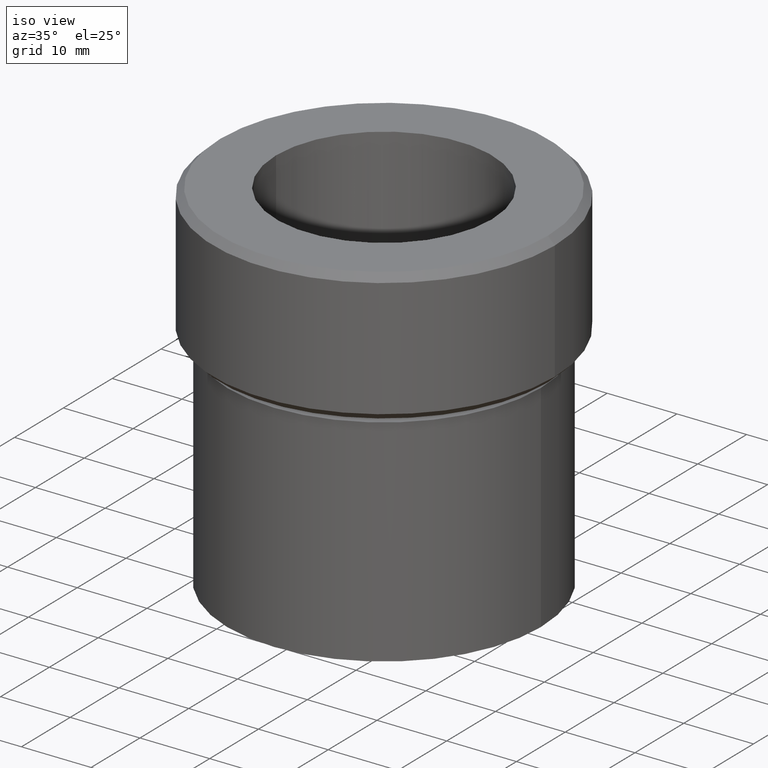
[diagram: clean part render]
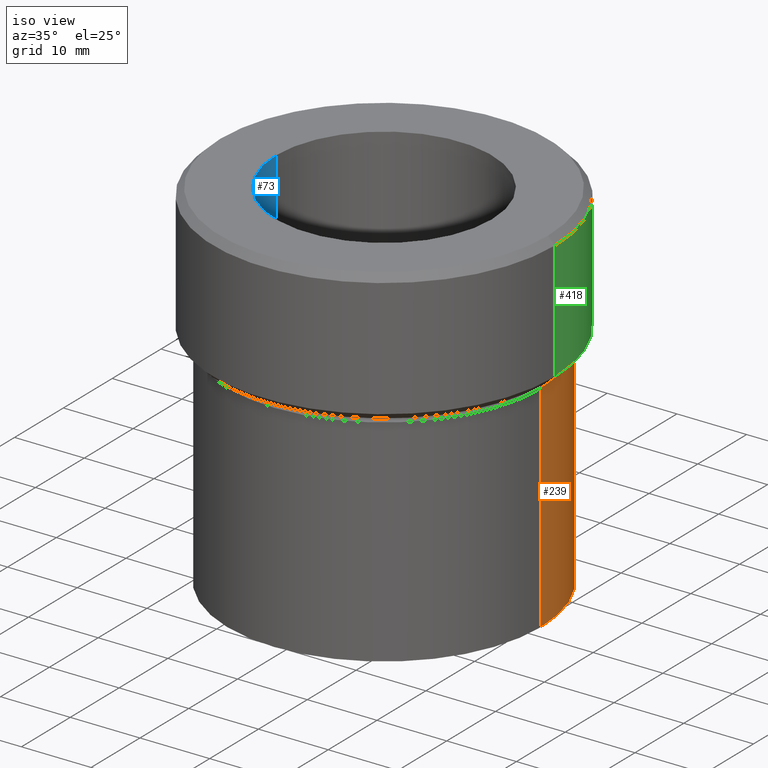
[diagram: same view with three faces highlighted in distinct colors, each labeled with its STEP entity id]
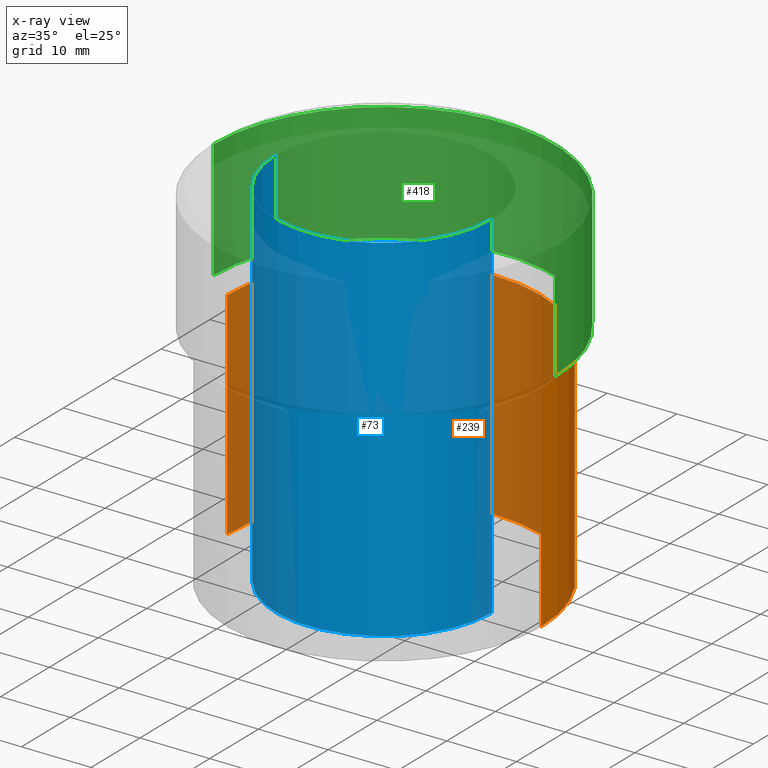
[diagram: x-ray of the same camera — body ghosted, the three highlighted faces saturated]
A machine part, iso view with three faces highlighted in distinct colors.
The next image is the same camera in x-ray (body ghosted, the three faces saturated) — at least one of them is partly hidden behind the body in this view.
Their STEP definitions:

[orange] entity #239 — the highlighted cylindrical surface (partial cylindrical patch) has radius 22.5 mm, axis along (-0, -0, 1).
#8 = ORIENTED_EDGE ( 'NONE', *, *, #213, .F. ) ;
#9 = AXIS2_PLACEMENT_3D ( 'NONE', #208, #228, #386 ) ;
#19 = CARTESIAN_POINT ( 'NONE',  ( 0.000000000000000000, 0.000000000000000000, 0.000000000000000000 ) ) ;
#20 = VERTEX_POINT ( 'NONE', #243 ) ;
#35 = EDGE_CURVE ( 'NONE', #287, #374, #364, .T. ) ;
#43 = DIRECTION ( 'NONE',  ( -0.000000000000000000, -0.000000000000000000, 1.000000000000000000 ) ) ;
#68 = EDGE_LOOP ( 'NONE', ( #310, #448, #8, #499 ) ) ;
#93 = FACE_OUTER_BOUND ( 'NONE', #68, .T. ) ;
#114 = DIRECTION ( 'NONE',  ( -0.000000000000000000, -0.000000000000000000, 1.000000000000000000 ) ) ;
#146 = DIRECTION ( 'NONE',  ( -0.000000000000000000, -0.000000000000000000, 1.000000000000000000 ) ) ;
#155 = VECTOR ( 'NONE', #245, 1000.000000000000000 ) ;
#160 = CARTESIAN_POINT ( 'NONE',  ( 22.50000000000000000, 0.000000000000000000, 0.000000000000000000 ) ) ;
#164 = AXIS2_PLACEMENT_3D ( 'NONE', #515, #114, #396 ) ;
#193 = VERTEX_POINT ( 'NONE', #257 ) ;
#205 = CIRCLE ( 'NONE', #164, 22.50000000000000355 ) ;
#208 = CARTESIAN_POINT ( 'NONE',  ( 0.000000000000000000, 0.000000000000000000, -19.99999999999999645 ) ) ;
#213 = EDGE_CURVE ( 'NONE', #374, #193, #474, .T. ) ;
#222 = AXIS2_PLACEMENT_3D ( 'NONE', #19, #146, #232 ) ;
#228 = DIRECTION ( 'NONE',  ( -0.000000000000000000, -0.000000000000000000, 1.000000000000000000 ) ) ;
#232 = DIRECTION ( 'NONE',  ( 1.000000000000000000, 0.000000000000000000, 0.000000000000000000 ) ) ;
#239 = ADVANCED_FACE ( 'NONE', ( #93 ), #267, .T. ) ;
#243 = CARTESIAN_POINT ( 'NONE',  ( -22.50000000000000355, 2.755455298081545567E-15, -51.00000000000000000 ) ) ;
#245 = DIRECTION ( 'NONE',  ( -0.000000000000000000, -0.000000000000000000, 1.000000000000000000 ) ) ;
#253 = LINE ( 'NONE', #405, #484 ) ;
#257 = CARTESIAN_POINT ( 'NONE',  ( -22.50000000000000000, 2.755455298081544778E-15, -19.99999999999999645 ) ) ;
#267 = CYLINDRICAL_SURFACE ( 'NONE', #222, 22.50000000000000000 ) ;
#287 = VERTEX_POINT ( 'NONE', #462 ) ;
#310 = ORIENTED_EDGE ( 'NONE', *, *, #435, .T. ) ;
#364 = LINE ( 'NONE', #160, #155 ) ;
#374 = VERTEX_POINT ( 'NONE', #503 ) ;
#386 = DIRECTION ( 'NONE',  ( 1.000000000000000000, 0.000000000000000000, 0.000000000000000000 ) ) ;
#396 = DIRECTION ( 'NONE',  ( 1.000000000000000000, 0.000000000000000000, 0.000000000000000000 ) ) ;
#405 = CARTESIAN_POINT ( 'NONE',  ( -22.50000000000000000, 2.755455298081544778E-15, 0.000000000000000000 ) ) ;
#435 = EDGE_CURVE ( 'NONE', #287, #20, #205, .T. ) ;
#448 = ORIENTED_EDGE ( 'NONE', *, *, #529, .T. ) ;
#462 = CARTESIAN_POINT ( 'NONE',  ( 22.50000000000000355, 0.000000000000000000, -51.00000000000000000 ) ) ;
#474 = CIRCLE ( 'NONE', #9, 22.50000000000000000 ) ;
#484 = VECTOR ( 'NONE', #43, 1000.000000000000000 ) ;
#499 = ORIENTED_EDGE ( 'NONE', *, *, #35, .F. ) ;
#503 = CARTESIAN_POINT ( 'NONE',  ( 22.50000000000000000, 0.000000000000000000, -19.99999999999999645 ) ) ;
#515 = CARTESIAN_POINT ( 'NONE',  ( 0.000000000000000000, 0.000000000000000000, -51.00000000000000000 ) ) ;
#529 = EDGE_CURVE ( 'NONE', #20, #193, #253, .T. ) ;

[blue] entity #73 — the highlighted cylindrical surface (partial cylindrical patch) has radius 15.5 mm, axis along (-0, -0, 1).
#3 = DIRECTION ( 'NONE',  ( 1.000000000000000000, 0.000000000000000000, 0.000000000000000000 ) ) ;
#73 = ADVANCED_FACE ( 'NONE', ( #526 ), #488, .F. ) ;
#95 = EDGE_CURVE ( 'NONE', #523, #427, #330, .T. ) ;
#111 = CARTESIAN_POINT ( 'NONE',  ( -15.50000000000000000, 1.898202538678397557E-15, -51.00000000000000000 ) ) ;
#119 = VECTOR ( 'NONE', #406, 1000.000000000000000 ) ;
#125 = DIRECTION ( 'NONE',  ( -0.000000000000000000, -0.000000000000000000, 1.000000000000000000 ) ) ;
#152 = ORIENTED_EDGE ( 'NONE', *, *, #329, .T. ) ;
#154 = VERTEX_POINT ( 'NONE', #453 ) ;
#169 = DIRECTION ( 'NONE',  ( -0.000000000000000000, -0.000000000000000000, 1.000000000000000000 ) ) ;
#178 = VECTOR ( 'NONE', #125, 1000.000000000000000 ) ;
#183 = DIRECTION ( 'NONE',  ( -1.000000000000000000, 0.000000000000000000, 0.000000000000000000 ) ) ;
#192 = DIRECTION ( 'NONE',  ( -0.000000000000000000, -0.000000000000000000, 1.000000000000000000 ) ) ;
#200 = EDGE_CURVE ( 'NONE', #400, #154, #217, .T. ) ;
#217 = LINE ( 'NONE', #248, #178 ) ;
#241 = AXIS2_PLACEMENT_3D ( 'NONE', #424, #458, #183 ) ;
#248 = CARTESIAN_POINT ( 'NONE',  ( -15.50000000000000000, 1.898202538678397557E-15, -65.00000000000000000 ) ) ;
#329 = EDGE_CURVE ( 'NONE', #523, #400, #465, .T. ) ;
#330 = LINE ( 'NONE', #375, #119 ) ;
#348 = AXIS2_PLACEMENT_3D ( 'NONE', #369, #169, #3 ) ;
#354 = CARTESIAN_POINT ( 'NONE',  ( 0.000000000000000000, 0.000000000000000000, 0.000000000000000000 ) ) ;
#368 = CARTESIAN_POINT ( 'NONE',  ( 15.50000000000000000, 0.000000000000000000, -51.00000000000000000 ) ) ;
#369 = CARTESIAN_POINT ( 'NONE',  ( 0.000000000000000000, 0.000000000000000000, -65.00000000000000000 ) ) ;
#375 = CARTESIAN_POINT ( 'NONE',  ( 15.50000000000000000, 0.000000000000000000, -65.00000000000000000 ) ) ;
#378 = ORIENTED_EDGE ( 'NONE', *, *, #450, .T. ) ;
#400 = VERTEX_POINT ( 'NONE', #111 ) ;
#406 = DIRECTION ( 'NONE',  ( -0.000000000000000000, -0.000000000000000000, 1.000000000000000000 ) ) ;
#424 = CARTESIAN_POINT ( 'NONE',  ( 0.000000000000000000, 0.000000000000000000, -51.00000000000000000 ) ) ;
#425 = ORIENTED_EDGE ( 'NONE', *, *, #200, .T. ) ;
#427 = VERTEX_POINT ( 'NONE', #434 ) ;
#428 = AXIS2_PLACEMENT_3D ( 'NONE', #354, #192, #476 ) ;
#434 = CARTESIAN_POINT ( 'NONE',  ( 15.50000000000000000, 0.000000000000000000, 0.000000000000000000 ) ) ;
#450 = EDGE_CURVE ( 'NONE', #154, #427, #475, .T. ) ;
#453 = CARTESIAN_POINT ( 'NONE',  ( -15.50000000000000000, 1.898202538678397557E-15, 0.000000000000000000 ) ) ;
#458 = DIRECTION ( 'NONE',  ( 0.000000000000000000, 0.000000000000000000, -1.000000000000000000 ) ) ;
#460 = EDGE_LOOP ( 'NONE', ( #152, #425, #378, #487 ) ) ;
#465 = CIRCLE ( 'NONE', #241, 15.50000000000000000 ) ;
#475 = CIRCLE ( 'NONE', #428, 15.50000000000000000 ) ;
#476 = DIRECTION ( 'NONE',  ( 1.000000000000000000, 0.000000000000000000, 0.000000000000000000 ) ) ;
#487 = ORIENTED_EDGE ( 'NONE', *, *, #95, .F. ) ;
#488 = CYLINDRICAL_SURFACE ( 'NONE', #348, 15.50000000000000000 ) ;
#523 = VERTEX_POINT ( 'NONE', #368 ) ;
#526 = FACE_OUTER_BOUND ( 'NONE', #460, .T. ) ;

[green] entity #418 — the highlighted cylindrical surface (partial cylindrical patch) has radius 24.5 mm, axis along (-0, -0, 1).
#14 = LINE ( 'NONE', #469, #492 ) ;
#27 = VERTEX_POINT ( 'NONE', #438 ) ;
#50 = DIRECTION ( 'NONE',  ( 0.000000000000000000, 0.000000000000000000, -1.000000000000000000 ) ) ;
#66 = EDGE_CURVE ( 'NONE', #27, #441, #527, .T. ) ;
#75 = CARTESIAN_POINT ( 'NONE',  ( -24.50000000000000000, 3.000384657911015469E-15, 0.000000000000000000 ) ) ;
#79 = DIRECTION ( 'NONE',  ( 1.000000000000000000, 0.000000000000000000, 0.000000000000000000 ) ) ;
#81 = DIRECTION ( 'NONE',  ( -1.000000000000000000, 0.000000000000000000, 0.000000000000000000 ) ) ;
#130 = CARTESIAN_POINT ( 'NONE',  ( 0.000000000000000000, 0.000000000000000000, -0.9999999999999940048 ) ) ;
#135 = EDGE_CURVE ( 'NONE', #398, #27, #143, .T. ) ;
#143 = CIRCLE ( 'NONE', #380, 24.50000000000000000 ) ;
#151 = CARTESIAN_POINT ( 'NONE',  ( 24.50000000000000000, 0.000000000000000000, -0.9999999999999940048 ) ) ;
#157 = DIRECTION ( 'NONE',  ( -0.000000000000000000, -0.000000000000000000, 1.000000000000000000 ) ) ;
#162 = EDGE_LOOP ( 'NONE', ( #356, #431, #393, #440 ) ) ;
#196 = AXIS2_PLACEMENT_3D ( 'NONE', #277, #157, #311 ) ;
#233 = VECTOR ( 'NONE', #291, 1000.000000000000000 ) ;
#237 = CYLINDRICAL_SURFACE ( 'NONE', #196, 24.50000000000000000 ) ;
#269 = DIRECTION ( 'NONE',  ( -0.000000000000000000, -0.000000000000000000, 1.000000000000000000 ) ) ;
#277 = CARTESIAN_POINT ( 'NONE',  ( 0.000000000000000000, 0.000000000000000000, 0.000000000000000000 ) ) ;
#290 = EDGE_CURVE ( 'NONE', #398, #457, #14, .T. ) ;
#291 = DIRECTION ( 'NONE',  ( -0.000000000000000000, -0.000000000000000000, 1.000000000000000000 ) ) ;
#303 = CIRCLE ( 'NONE', #365, 24.50000000000000000 ) ;
#311 = DIRECTION ( 'NONE',  ( 1.000000000000000000, 0.000000000000000000, 0.000000000000000000 ) ) ;
#356 = ORIENTED_EDGE ( 'NONE', *, *, #135, .T. ) ;
#360 = CARTESIAN_POINT ( 'NONE',  ( -24.50000000000000000, 3.000384657911015469E-15, -0.9999999999999940048 ) ) ;
#365 = AXIS2_PLACEMENT_3D ( 'NONE', #130, #50, #79 ) ;
#366 = DIRECTION ( 'NONE',  ( -0.000000000000000000, -0.000000000000000000, 1.000000000000000000 ) ) ;
#380 = AXIS2_PLACEMENT_3D ( 'NONE', #447, #366, #81 ) ;
#393 = ORIENTED_EDGE ( 'NONE', *, *, #519, .T. ) ;
#394 = FACE_OUTER_BOUND ( 'NONE', #162, .T. ) ;
#398 = VERTEX_POINT ( 'NONE', #432 ) ;
#418 = ADVANCED_FACE ( 'NONE', ( #394 ), #237, .T. ) ;
#431 = ORIENTED_EDGE ( 'NONE', *, *, #66, .T. ) ;
#432 = CARTESIAN_POINT ( 'NONE',  ( 24.50000000000000000, 0.000000000000000000, -17.99999999999998224 ) ) ;
#438 = CARTESIAN_POINT ( 'NONE',  ( -24.50000000000000000, 3.000384657911015469E-15, -17.99999999999998224 ) ) ;
#440 = ORIENTED_EDGE ( 'NONE', *, *, #290, .F. ) ;
#441 = VERTEX_POINT ( 'NONE', #360 ) ;
#447 = CARTESIAN_POINT ( 'NONE',  ( 0.000000000000000000, 0.000000000000000000, -17.99999999999998224 ) ) ;
#457 = VERTEX_POINT ( 'NONE', #151 ) ;
#469 = CARTESIAN_POINT ( 'NONE',  ( 24.50000000000000000, 0.000000000000000000, 0.000000000000000000 ) ) ;
#492 = VECTOR ( 'NONE', #269, 1000.000000000000000 ) ;
#519 = EDGE_CURVE ( 'NONE', #441, #457, #303, .T. ) ;
#527 = LINE ( 'NONE', #75, #233 ) ;